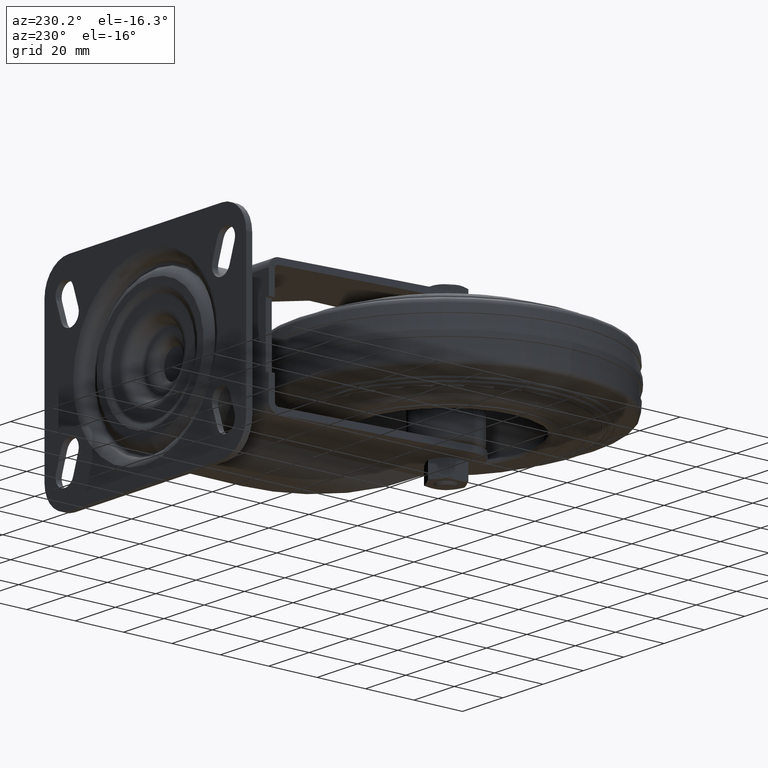
[diagram: clean part render]
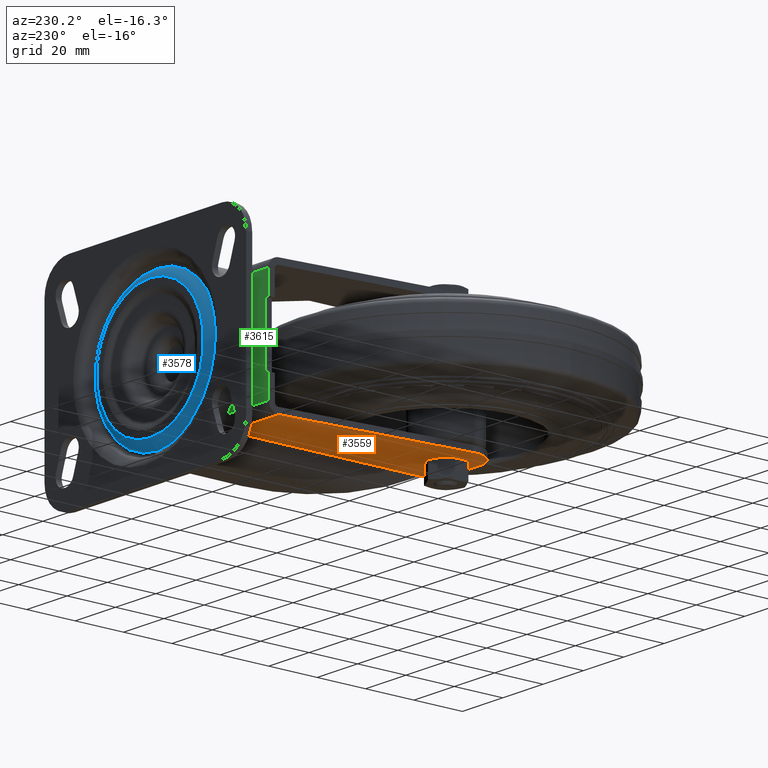
[diagram: same view with three faces highlighted in distinct colors, each labeled with its STEP entity id]
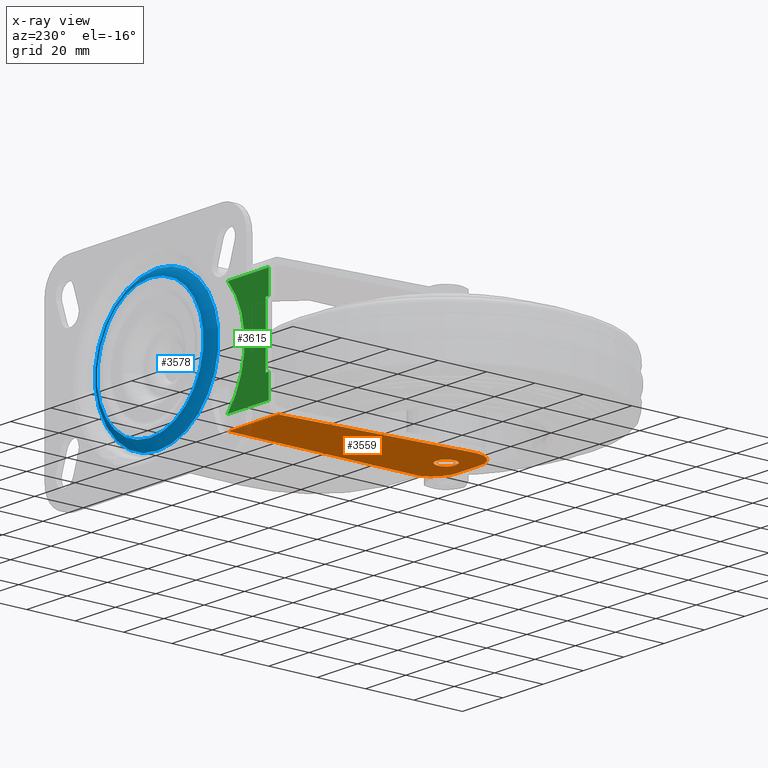
[diagram: x-ray of the same camera — body ghosted, the three highlighted faces saturated]
A machine part, auxiliary view with three faces highlighted in distinct colors.
The next image is the same camera in x-ray (body ghosted, the three faces saturated) — at least one of them is partly hidden behind the body in this view.
Their STEP definitions:

[orange] entity #3559 — the highlighted planar face has unit normal (0, 0, -1).
#238=FACE_BOUND('',#817,.T.);
#377=CIRCLE('',#4066,10.);
#378=CIRCLE('',#4067,10.);
#379=CIRCLE('',#4068,4.);
#578=FACE_OUTER_BOUND('',#816,.T.);
#816=EDGE_LOOP('',(#2631,#2632,#2633,#2634,#2635,#2636,#2637));
#817=EDGE_LOOP('',(#2638));
#1055=LINE('',#5896,#1278);
#1056=LINE('',#5900,#1279);
#1057=LINE('',#5904,#1280);
#1058=LINE('',#5907,#1281);
#1059=LINE('',#5908,#1282);
#1278=VECTOR('',#4827,1000.);
#1279=VECTOR('',#4830,1000.);
#1280=VECTOR('',#4833,1000.);
#1281=VECTOR('',#4836,1000.);
#1282=VECTOR('',#4837,1000.);
#1543=VERTEX_POINT('',#5877);
#1546=VERTEX_POINT('',#5883);
#1547=VERTEX_POINT('',#5898);
#1548=VERTEX_POINT('',#5899);
#1549=VERTEX_POINT('',#5901);
#1550=VERTEX_POINT('',#5903);
#1551=VERTEX_POINT('',#5905);
#1552=VERTEX_POINT('',#5909);
#1933=EDGE_CURVE('',#1543,#1546,#1055,.T.);
#1934=EDGE_CURVE('',#1547,#1548,#1056,.T.);
#1935=EDGE_CURVE('',#1549,#1547,#377,.F.);
#1936=EDGE_CURVE('',#1550,#1549,#1057,.T.);
#1937=EDGE_CURVE('',#1551,#1550,#378,.F.);
#1938=EDGE_CURVE('',#1543,#1551,#1058,.T.);
#1939=EDGE_CURVE('',#1548,#1546,#1059,.T.);
#1940=EDGE_CURVE('',#1552,#1552,#379,.F.);
#2631=ORIENTED_EDGE('',*,*,#1934,.F.);
#2632=ORIENTED_EDGE('',*,*,#1935,.F.);
#2633=ORIENTED_EDGE('',*,*,#1936,.F.);
#2634=ORIENTED_EDGE('',*,*,#1937,.F.);
#2635=ORIENTED_EDGE('',*,*,#1938,.F.);
#2636=ORIENTED_EDGE('',*,*,#1933,.T.);
#2637=ORIENTED_EDGE('',*,*,#1939,.F.);
#2638=ORIENTED_EDGE('',*,*,#1940,.T.);
#3233=PLANE('',#4065);
#3559=ADVANCED_FACE('',(#578,#238),#3233,.T.);
#4065=AXIS2_PLACEMENT_3D('',#5897,#4828,#4829);
#4066=AXIS2_PLACEMENT_3D('',#5902,#4831,#4832);
#4067=AXIS2_PLACEMENT_3D('',#5906,#4834,#4835);
#4068=AXIS2_PLACEMENT_3D('',#5910,#4838,#4839);
#4827=DIRECTION('',(1.,0.,0.));
#4828=DIRECTION('center_axis',(0.,0.,-1.));
#4829=DIRECTION('ref_axis',(-1.,0.,0.));
#4830=DIRECTION('',(0.559659144082599,0.828722898467716,0.));
#4831=DIRECTION('center_axis',(0.,0.,-1.));
#4832=DIRECTION('ref_axis',(-1.,0.,0.));
#4833=DIRECTION('',(1.,0.,0.));
#4834=DIRECTION('center_axis',(0.,0.,-1.));
#4835=DIRECTION('ref_axis',(-1.,0.,0.));
#4836=DIRECTION('',(-0.0873795186723179,-0.996175094908819,0.));
#4837=DIRECTION('',(0.,1.,0.));
#4838=DIRECTION('center_axis',(0.,0.,-1.));
#4839=DIRECTION('ref_axis',(-1.,0.,0.));
#5877=CARTESIAN_POINT('',(-8.11424154448863,76.,-26.));
#5883=CARTESIAN_POINT('',(16.6775985670984,76.,-26.));
#5896=CARTESIAN_POINT('',(-26.,76.,-26.));
#5897=CARTESIAN_POINT('Origin',(-26.,-10.,-26.));
#5898=CARTESIAN_POINT('',(15.0579377939621,-5.59659144083729,-26.));
#5899=CARTESIAN_POINT('',(16.6775985670984,-3.19825669612718,-26.));
#5900=CARTESIAN_POINT('',(0.155526724420239,-27.6635395578958,-26.));
#5901=CARTESIAN_POINT('',(6.77070880928472,-10.,-26.));
#5902=CARTESIAN_POINT('Origin',(6.77070880928488,-1.12861109347051E-11,
-26.));
#5903=CARTESIAN_POINT('',(-4.74218717566271,-10.0000000000111,-26.));
#5904=CARTESIAN_POINT('',(-26.,-10.,-26.));
#5905=CARTESIAN_POINT('',(-14.7039381247509,0.873795186712101,-26.));
#5906=CARTESIAN_POINT('Origin',(-4.74218717566271,-1.11043986505965E-11,
-26.));
#5907=CARTESIAN_POINT('',(-15.7366983611595,-10.9002457115963,-26.));
#5908=CARTESIAN_POINT('',(16.6775985670984,93.4999999999998,-26.));
#5909=CARTESIAN_POINT('',(4.,4.89858719658941E-16,-26.));
#5910=CARTESIAN_POINT('Origin',(0.,0.,-26.));

[blue] entity #3578 — the highlighted toroidal blend (fillet) surface has major radius 25 mm and minor (blend) radius 5.7 mm.
#208=TOROIDAL_SURFACE('',#4118,25.0000033380992,5.7000000000012);
#402=CIRCLE('',#4116,30.1906122892829);
#404=CIRCLE('',#4119,26.4966662928242);
#405=CIRCLE('',#4120,5.7000000000012);
#597=FACE_OUTER_BOUND('',#841,.T.);
#841=EDGE_LOOP('',(#2738,#2739,#2740,#2741));
#1597=VERTEX_POINT('',#6068);
#1598=VERTEX_POINT('',#6072);
#2003=EDGE_CURVE('',#1597,#1597,#402,.T.);
#2005=EDGE_CURVE('',#1598,#1598,#404,.T.);
#2006=EDGE_CURVE('',#1598,#1597,#405,.T.);
#2738=ORIENTED_EDGE('',*,*,#2005,.F.);
#2739=ORIENTED_EDGE('',*,*,#2006,.T.);
#2740=ORIENTED_EDGE('',*,*,#2003,.T.);
#2741=ORIENTED_EDGE('',*,*,#2006,.F.);
#3578=ADVANCED_FACE('',(#597),#208,.T.);
#4116=AXIS2_PLACEMENT_3D('',#6069,#4964,#4965);
#4118=AXIS2_PLACEMENT_3D('',#6071,#4968,#4969);
#4119=AXIS2_PLACEMENT_3D('',#6073,#4970,#4971);
#4120=AXIS2_PLACEMENT_3D('',#6074,#4972,#4973);
#4964=DIRECTION('center_axis',(0.,1.,0.));
#4965=DIRECTION('ref_axis',(0.,0.,1.));
#4968=DIRECTION('center_axis',(0.,1.,0.));
#4969=DIRECTION('ref_axis',(0.,0.,1.));
#4970=DIRECTION('center_axis',(0.,1.,0.));
#4971=DIRECTION('ref_axis',(0.,0.,1.));
#4972=DIRECTION('center_axis',(-1.,0.,1.44654450020506E-16));
#4973=DIRECTION('ref_axis',(-1.44654450020506E-16,0.,-1.));
#6068=CARTESIAN_POINT('',(37.,88.3933918541364,-30.1906122892829));
#6069=CARTESIAN_POINT('Origin',(37.,88.3933918541364,0.));
#6071=CARTESIAN_POINT('Origin',(37.,86.0380620012486,0.));
#6072=CARTESIAN_POINT('',(37.,91.5380620012456,-26.4966662928242));
#6073=CARTESIAN_POINT('Origin',(37.,91.5380620012456,0.));
#6074=CARTESIAN_POINT('Origin',(37.,86.0380620012486,-25.0000033380992));

[green] entity #3615 — the highlighted planar face has unit normal (0, 1, 0).
#446=CIRCLE('',#4198,33.);
#634=FACE_OUTER_BOUND('',#886,.T.);
#886=EDGE_LOOP('',(#2898,#2899,#2900,#2901,#2902,#2903,#2904,#2905));
#1054=LINE('',#5882,#1277);
#1065=LINE('',#5945,#1288);
#1085=LINE('',#6045,#1308);
#1140=LINE('',#6262,#1363);
#1141=LINE('',#6265,#1364);
#1142=LINE('',#6267,#1365);
#1143=LINE('',#6268,#1366);
#1277=VECTOR('',#4826,1000.);
#1288=VECTOR('',#4857,1000.);
#1308=VECTOR('',#4935,1000.);
#1363=VECTOR('',#5178,1000.);
#1364=VECTOR('',#5181,1000.);
#1365=VECTOR('',#5182,1000.);
#1366=VECTOR('',#5183,1000.);
#1544=VERTEX_POINT('',#5879);
#1545=VERTEX_POINT('',#5881);
#1562=VERTEX_POINT('',#5931);
#1563=VERTEX_POINT('',#5944);
#1590=VERTEX_POINT('',#6044);
#1658=VERTEX_POINT('',#6261);
#1659=VERTEX_POINT('',#6264);
#1660=VERTEX_POINT('',#6266);
#1931=EDGE_CURVE('',#1544,#1545,#1054,.T.);
#1951=EDGE_CURVE('',#1563,#1562,#1065,.T.);
#1991=EDGE_CURVE('',#1563,#1590,#1085,.T.);
#2097=EDGE_CURVE('',#1590,#1658,#1140,.T.);
#2098=EDGE_CURVE('',#1545,#1562,#446,.T.);
#2099=EDGE_CURVE('',#1659,#1544,#1141,.T.);
#2100=EDGE_CURVE('',#1659,#1660,#1142,.T.);
#2101=EDGE_CURVE('',#1660,#1658,#1143,.T.);
#2898=ORIENTED_EDGE('',*,*,#2097,.F.);
#2899=ORIENTED_EDGE('',*,*,#1991,.F.);
#2900=ORIENTED_EDGE('',*,*,#1951,.T.);
#2901=ORIENTED_EDGE('',*,*,#2098,.F.);
#2902=ORIENTED_EDGE('',*,*,#1931,.F.);
#2903=ORIENTED_EDGE('',*,*,#2099,.F.);
#2904=ORIENTED_EDGE('',*,*,#2100,.T.);
#2905=ORIENTED_EDGE('',*,*,#2101,.T.);
#3259=PLANE('',#4197);
#3615=ADVANCED_FACE('',(#634),#3259,.T.);
#4197=AXIS2_PLACEMENT_3D('',#6260,#5176,#5177);
#4198=AXIS2_PLACEMENT_3D('',#6263,#5179,#5180);
#4826=DIRECTION('',(1.,0.,0.));
#4857=DIRECTION('',(1.,0.,0.));
#4935=DIRECTION('',(0.,0.,-1.));
#5176=DIRECTION('center_axis',(0.,1.,0.));
#5177=DIRECTION('ref_axis',(0.,0.,1.));
#5178=DIRECTION('',(1.,0.,0.));
#5179=DIRECTION('center_axis',(0.,1.,0.));
#5180=DIRECTION('ref_axis',(0.,0.,1.));
#5181=DIRECTION('',(0.,0.,-1.));
#5182=DIRECTION('',(1.,0.,0.));
#5183=DIRECTION('',(0.,0.,1.));
#5879=CARTESIAN_POINT('',(-8.00000000000036,80.,-22.));
#5881=CARTESIAN_POINT('',(12.4032522475023,80.,-22.));
#5882=CARTESIAN_POINT('',(-26.,80.,-22.));
#5931=CARTESIAN_POINT('',(12.4032522475023,80.,22.));
#5944=CARTESIAN_POINT('',(-8.00000000000036,80.,22.));
#5945=CARTESIAN_POINT('',(-26.,80.,22.));
#6044=CARTESIAN_POINT('',(-8.00000000000035,80.,12.5));
#6045=CARTESIAN_POINT('',(-8.00000000000036,80.,-22.));
#6260=CARTESIAN_POINT('Origin',(-26.,80.,-22.));
#6261=CARTESIAN_POINT('',(-6.50000000000035,80.,12.5));
#6262=CARTESIAN_POINT('',(-26.,80.,12.5));
#6263=CARTESIAN_POINT('Origin',(37.,80.,0.));
#6264=CARTESIAN_POINT('',(-8.00000000000035,80.,-12.5));
#6265=CARTESIAN_POINT('',(-8.00000000000036,80.,-22.));
#6266=CARTESIAN_POINT('',(-6.50000000000035,80.,-12.5));
#6267=CARTESIAN_POINT('',(-26.,80.,-12.5));
#6268=CARTESIAN_POINT('',(-6.50000000000035,80.,-22.));